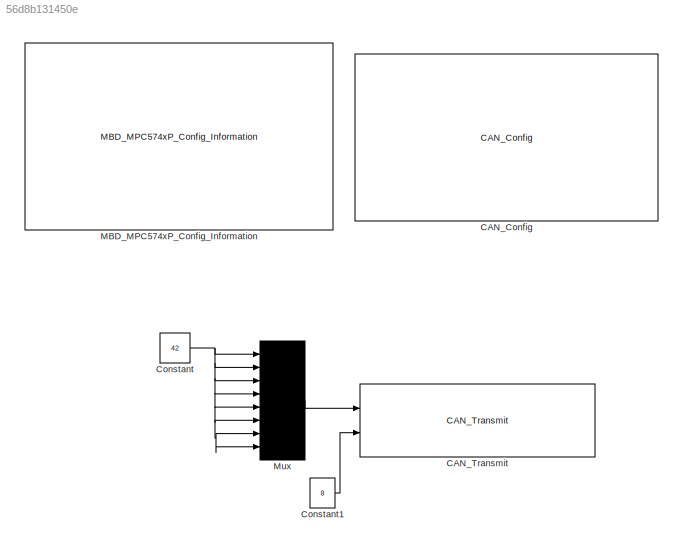
MODEL slx_56d8b131450e
KIND model
CONFIG AbsTol = auto
CONFIG EnableMultiTasking = off
CONFIG FixedStep = 0.5
CONFIG InitFcn = mbd_pnt_consistency_checks(bdroot(gcs));
CONFIG MaxStep = auto
CONFIG MinStep = auto
CONFIG RelTol = 1e-3
CONFIG SampleTimeConstraint = Unconstrained
CONFIG Solver = FixedStepDiscrete
CONFIG SolverName = FixedStepDiscrete
CONFIG StartTime = 0.0
CONFIG StopTime = 10.0
BLOCK [Reference] CAN_Config  REF=mbd_pnt_ec_toolbox/MPC574xP/Communication Blocks/CAN_Config
  Ports = []
  Priority = 1
  SourceBlock = mbd_pnt_ec_toolbox/MPC574xP/Communication Blocks/CAN_Config
  SourceProductName = Model Based Design Toolbox for MPC574xP
  SourceType = flexcan_pnt_config_block
BLOCK [Reference] CAN_Transmit  REF=mbd_pnt_ec_toolbox/MPC574xP/Communication Blocks/CAN_Transmit
  Ports = [2]
  SourceBlock = mbd_pnt_ec_toolbox/MPC574xP/Communication Blocks/CAN_Transmit
  SourceProductName = Model Based Design Toolbox for MPC574xP
  SourceType = flexcan_pnt_transmit_block
BLOCK [Constant] Constant
  OutDataTypeStr = uint8
  Value = 42
BLOCK [Constant] Constant1
  OutDataTypeStr = uint8
  Value = 8
BLOCK [Reference] MBD_MPC574xP_Config_Information  REF=mbd_pnt_ec_toolbox/MPC574xP/MBD_MPC574xP_Config_Information
  Ports = []
  SourceBlock = mbd_pnt_ec_toolbox/MPC574xP/MBD_MPC574xP_Config_Information
  SourceProductName = Model Based Design Toolbox for MPC574xP
  SourceType = MBDTBX_EC_PNT
BLOCK [Mux] Mux
  DisplayOption = bar
  Inputs = 8
  Ports = [8, 1]
LINE Constant1:1 -> CAN_Transmit:2
NET Constant:1 -> Mux:1, Mux:2, Mux:3, Mux:4, Mux:5, Mux:6, Mux:7, Mux:8
LINE Mux:1 -> CAN_Transmit:1
note: NET lines group one-source signal fan-out (src -> all destinations, sorted); 1:1 wires keep LINE
